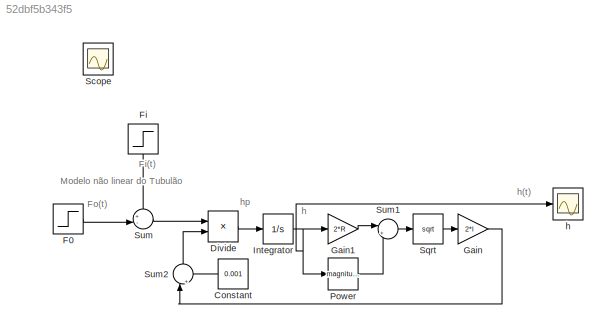
MODEL slx_52dbf5b343f5
KIND model
CONFIG AbsTol = auto
CONFIG EnableMultiTasking = off
CONFIG FixedStep = auto
CONFIG MaxStep = auto
CONFIG MinStep = auto
CONFIG RelTol = 1e-3
CONFIG SampleTimeConstraint = Unconstrained
CONFIG Solver = VariableStepAuto
CONFIG SolverName = VariableStepAuto
CONFIG StartTime = 0.0
CONFIG StopTime = 30
BLOCK [Constant] Constant
  Value = 0.001
BLOCK [Product] Divide
  InputSameDT = off
  Inputs = */
  OutDataTypeStr = Inherit: Inherit via internal rule
  Ports = [2, 1]
  RndMeth = Floor
  SaturateOnIntegerOverflow = off
BLOCK [Step] F0
  SampleTime = 0
  Time = 20
BLOCK [Step] Fi
  SampleTime = 0
BLOCK [Gain] Gain
  Gain = 2*l
  OutDataTypeStr = Inherit: Inherit via internal rule
  ParamDataTypeStr = Inherit: Inherit via internal rule
  SaturateOnIntegerOverflow = off
BLOCK [Gain] Gain1
  Gain = 2*R
  OutDataTypeStr = Inherit: Inherit via internal rule
  ParamDataTypeStr = Inherit: Inherit via internal rule
  SaturateOnIntegerOverflow = off
BLOCK [Integrator] Integrator
  Ports = [1, 1]
BLOCK [Math] Power
  Operator = magnitude^2
  Ports = [1, 1]
BLOCK [Scope] Scope
  Floating = off
  IOType = viewer
  NumInputPorts = 1
  Ports = []
  ScopeSpecificationString = Simulink.scopes.TimeScopeBlockCfg('CurrentConfiguration', extmgr.ConfigurationSet(extmgr.Configuration('Core','General UI',true),extmgr.Configuration('Core','Source UI',true),extmgr.Configuration('Sources','WiredSimulink',true),extmgr.Configuration('Visuals','Time Domain',true,'SerializedDisplays',{struct('MinYLimReal','-0.15763','MaxYLimReal','1.41863','YLabelReal','','MinYLimMag','0.00000','MaxY...<+1417ch>
BLOCK [Sqrt] Sqrt
BLOCK [Sum] Sum
  IconShape = round
  InputSameDT = off
  Inputs = +-|
  OutDataTypeStr = Inherit: Inherit via internal rule
  Ports = [2, 1]
  SaturateOnIntegerOverflow = off
BLOCK [Sum] Sum1
  IconShape = round
  InputSameDT = off
  Inputs = |+-
  OutDataTypeStr = Inherit: Inherit via internal rule
  Ports = [2, 1]
  SaturateOnIntegerOverflow = off
BLOCK [Sum] Sum2
  IconShape = round
  InputSameDT = off
  Inputs = |++
  OutDataTypeStr = Inherit: Inherit via internal rule
  Ports = [2, 1]
  SaturateOnIntegerOverflow = off
BLOCK [Scope] h
  Floating = off
  NumInputPorts = 1
  Ports = [1]
  ScopeSpecificationString = Simulink.scopes.TimeScopeBlockCfg('CurrentConfiguration', extmgr.ConfigurationSet(extmgr.Configuration('Core','General UI',true),extmgr.Configuration('Core','Source UI',true),extmgr.Configuration('Sources','WiredSimulink',true,'DataLoggingVariableName','ScopeData1'),extmgr.Configuration('Visuals','Time Domain',true),extmgr.Configuration('Tools','Plot Navigation',true),extmgr.Configuration('Tools',...<+40ch>
ANNOTATION (root): Modelo não linear do Tubulão
ANNOTATION (root): Fi(t)
ANNOTATION (root): Fo(t)
ANNOTATION (root): h
ANNOTATION (root): h(t)
ANNOTATION (root): hp
LINE Constant:1 -> Sum2:2
LINE Divide:1 -> Integrator:1
LINE F0:1 -> Sum:2
LINE Fi:1 -> Sum:1
LINE Gain1:1 -> Sum1:1
LINE Gain:1 -> Sum2:1
NET Integrator:1 -> Gain1:1, Power:1, h:1
LINE Power:1 -> Sum1:2
LINE Sqrt:1 -> Gain:1
LINE Sum1:1 -> Sqrt:1
LINE Sum2:1 -> Divide:2
LINE Sum:1 -> Divide:1
note: NET lines group one-source signal fan-out (src -> all destinations, sorted); 1:1 wires keep LINE
